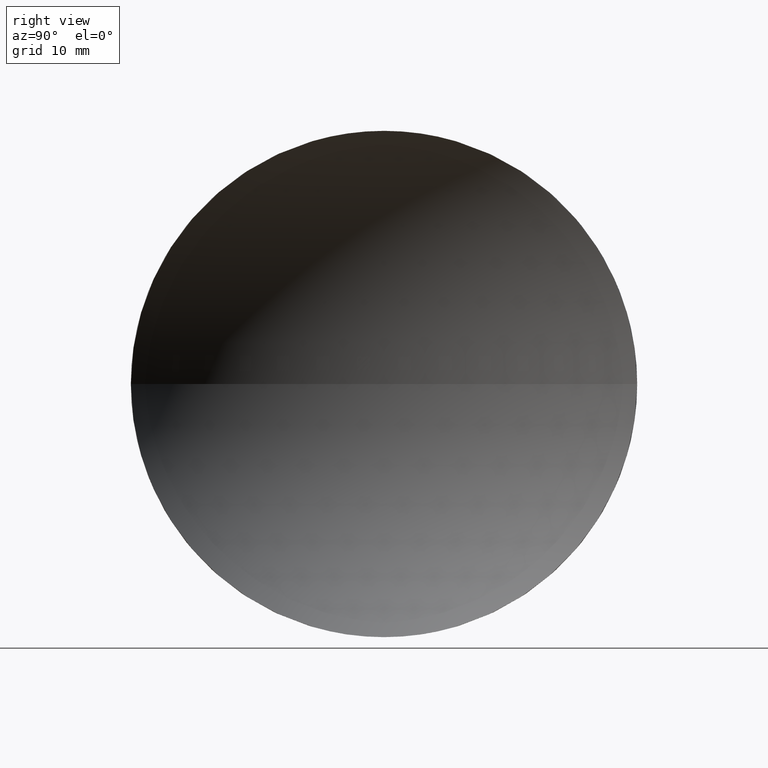
[diagram: clean part render]
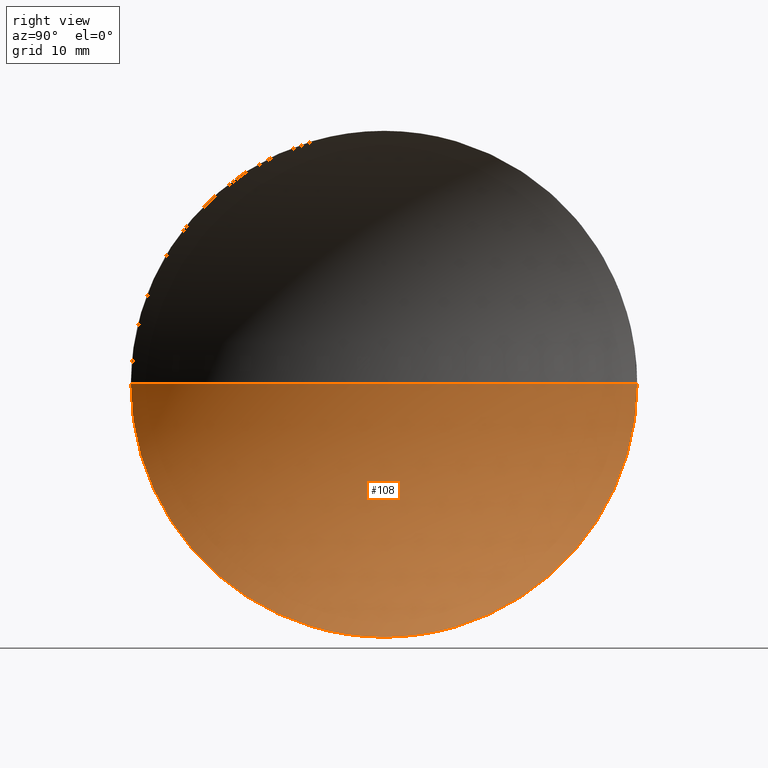
[diagram: same view with one face highlighted and labeled with its STEP entity id]
A machine part, right view. The second image highlights one B-rep face of the part: STEP entity #108.
In plain terms, the highlighted spherical surface has radius 32.5 mm.
Its self-contained STEP definition (entity closure, byte-faithful):
#4 = CARTESIAN_POINT ( 'NONE',  ( 128.4728774773483100, 65.15563045701519200, 0.0000000000000000000 ) ) ;
#8 = CIRCLE ( 'NONE', #132, 32.50000000000000000 ) ;
#11 = DIRECTION ( 'NONE',  ( 0.0000000000000000000, 0.0000000000000000000, -1.000000000000000000 ) ) ;
#15 = VERTEX_POINT ( 'NONE', #55 ) ;
#16 = SPHERICAL_SURFACE ( 'NONE', #134, 32.50000000000000000 ) ;
#23 = CIRCLE ( 'NONE', #30, 24.99999999999999300 ) ;
#28 = ORIENTED_EDGE ( 'NONE', *, *, #34, .F. ) ;
#30 = AXIS2_PLACEMENT_3D ( 'NONE', #4, #89, #94 ) ;
#32 = CARTESIAN_POINT ( 'NONE',  ( 128.4728774773483100, 65.15563045701519200, -24.99999999999999300 ) ) ;
#34 = EDGE_CURVE ( 'NONE', #15, #62, #23, .T. ) ;
#39 = DIRECTION ( 'NONE',  ( 0.0000000000000000000, 0.0000000000000000000, 1.000000000000000000 ) ) ;
#46 = CIRCLE ( 'NONE', #151, 32.50000000000000000 ) ;
#50 = CARTESIAN_POINT ( 'NONE',  ( 149.2394371346434800, 65.15563045701517800, 0.0000000000000000000 ) ) ;
#53 = EDGE_CURVE ( 'NONE', #103, #120, #46, .T. ) ;
#55 = CARTESIAN_POINT ( 'NONE',  ( 128.4728774773483100, 90.15563045701519200, 0.0000000000000000000 ) ) ;
#57 = EDGE_CURVE ( 'NONE', #15, #120, #8, .T. ) ;
#62 = VERTEX_POINT ( 'NONE', #32 ) ;
#63 = CIRCLE ( 'NONE', #82, 24.99999999999999300 ) ;
#66 = EDGE_CURVE ( 'NONE', #62, #103, #63, .T. ) ;
#70 = ORIENTED_EDGE ( 'NONE', *, *, #57, .T. ) ;
#75 = CARTESIAN_POINT ( 'NONE',  ( 128.4728774773483100, 40.15563045701518500, -3.061616997868382300E-015 ) ) ;
#82 = AXIS2_PLACEMENT_3D ( 'NONE', #170, #182, #154 ) ;
#89 = DIRECTION ( 'NONE',  ( -1.000000000000000000, -0.0000000000000000000, -0.0000000000000000000 ) ) ;
#94 = DIRECTION ( 'NONE',  ( 0.0000000000000000000, 0.0000000000000000000, 1.000000000000000000 ) ) ;
#101 = EDGE_LOOP ( 'NONE', ( #163, #137, #28, #70 ) ) ;
#103 = VERTEX_POINT ( 'NONE', #75 ) ;
#106 = DIRECTION ( 'NONE',  ( 0.0000000000000000000, 1.000000000000000000, 1.224646799147353500E-016 ) ) ;
#108 = ADVANCED_FACE ( 'NONE', ( #125 ), #16, .F. ) ;
#109 = DIRECTION ( 'NONE',  ( 1.000000000000000000, 0.0000000000000000000, 0.0000000000000000000 ) ) ;
#113 = DIRECTION ( 'NONE',  ( 0.0000000000000000000, 1.000000000000000000, 0.0000000000000000000 ) ) ;
#120 = VERTEX_POINT ( 'NONE', #152 ) ;
#125 = FACE_OUTER_BOUND ( 'NONE', #101, .T. ) ;
#132 = AXIS2_PLACEMENT_3D ( 'NONE', #155, #39, #109 ) ;
#134 = AXIS2_PLACEMENT_3D ( 'NONE', #50, #11, #113 ) ;
#136 = CARTESIAN_POINT ( 'NONE',  ( 149.2394371346434800, 65.15563045701517800, 0.0000000000000000000 ) ) ;
#137 = ORIENTED_EDGE ( 'NONE', *, *, #66, .F. ) ;
#149 = DIRECTION ( 'NONE',  ( 0.0000000000000000000, 1.224646799147353200E-016, -1.000000000000000000 ) ) ;
#151 = AXIS2_PLACEMENT_3D ( 'NONE', #136, #149, #106 ) ;
#152 = CARTESIAN_POINT ( 'NONE',  ( 116.7394371346435000, 65.15563045701517800, 0.0000000000000000000 ) ) ;
#154 = DIRECTION ( 'NONE',  ( 0.0000000000000000000, 0.0000000000000000000, 1.000000000000000000 ) ) ;
#155 = CARTESIAN_POINT ( 'NONE',  ( 149.2394371346434800, 65.15563045701517800, 0.0000000000000000000 ) ) ;
#163 = ORIENTED_EDGE ( 'NONE', *, *, #53, .F. ) ;
#170 = CARTESIAN_POINT ( 'NONE',  ( 128.4728774773483100, 65.15563045701519200, 0.0000000000000000000 ) ) ;
#182 = DIRECTION ( 'NONE',  ( -1.000000000000000000, -0.0000000000000000000, -0.0000000000000000000 ) ) ;